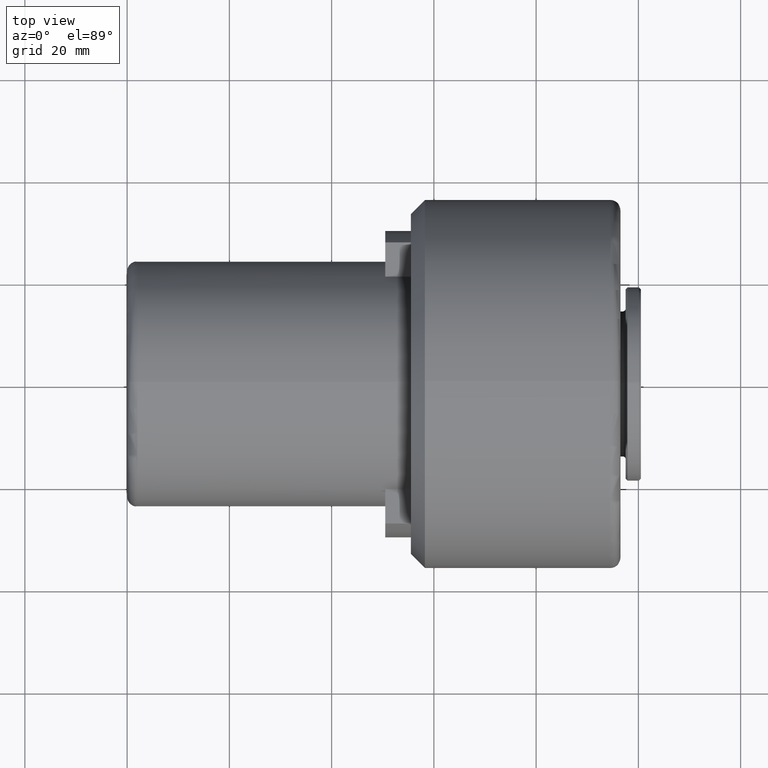
[diagram: clean part render]
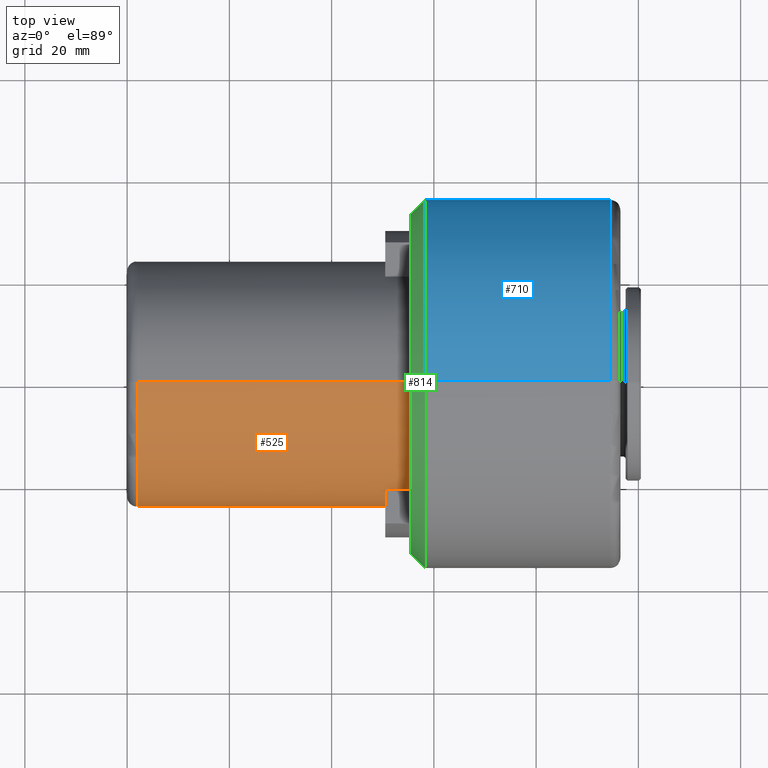
[diagram: same view with three faces highlighted in distinct colors, each labeled with its STEP entity id]
A machine part, top view with three faces highlighted in distinct colors.
Their STEP definitions:

[orange] entity #525 — the highlighted cylindrical surface (partial cylindrical patch) has radius 24 mm, axis along (-1, 0, -0).
#49 = ORIENTED_EDGE ( 'NONE', *, *, #817, .T. ) ;
#57 = ORIENTED_EDGE ( 'NONE', *, *, #260, .T. ) ;
#91 = VECTOR ( 'NONE', #605, 1000.000000000000000 ) ;
#96 = VERTEX_POINT ( 'NONE', #1067 ) ;
#112 = VERTEX_POINT ( 'NONE', #1016 ) ;
#120 = CYLINDRICAL_SURFACE ( 'NONE', #370, 24.00000000000000000 ) ;
#159 = EDGE_CURVE ( 'NONE', #872, #343, #1342, .T. ) ;
#163 = VECTOR ( 'NONE', #1170, 1000.000000000000000 ) ;
#171 = AXIS2_PLACEMENT_3D ( 'NONE', #741, #1278, #1062 ) ;
#199 = LINE ( 'NONE', #1335, #163 ) ;
#201 = CIRCLE ( 'NONE', #566, 24.00000000000000000 ) ;
#212 = DIRECTION ( 'NONE',  ( 0.0000000000000000000, 0.0000000000000000000, 1.000000000000000000 ) ) ;
#214 = DIRECTION ( 'NONE',  ( -1.000000000000000000, 0.0000000000000000000, -1.445602896647339200E-016 ) ) ;
#257 = VERTEX_POINT ( 'NONE', #568 ) ;
#260 = EDGE_CURVE ( 'NONE', #389, #257, #1305, .T. ) ;
#270 = CARTESIAN_POINT ( 'NONE',  ( 55.49999999999999300, 0.0000000000000000000, 24.00000000000000400 ) ) ;
#281 = DIRECTION ( 'NONE',  ( 1.000000000000000000, -0.0000000000000000000, -0.0000000000000000000 ) ) ;
#295 = VERTEX_POINT ( 'NONE', #1112 ) ;
#311 = CIRCLE ( 'NONE', #507, 24.00000000000000000 ) ;
#326 = EDGE_CURVE ( 'NONE', #872, #444, #956, .T. ) ;
#343 = VERTEX_POINT ( 'NONE', #526 ) ;
#355 = CARTESIAN_POINT ( 'NONE',  ( 55.49999999999999300, 0.0000000000000000000, -7.523163844717393100E-031 ) ) ;
#370 = AXIS2_PLACEMENT_3D ( 'NONE', #1237, #1216, #530 ) ;
#377 = LINE ( 'NONE', #404, #91 ) ;
#387 = ORIENTED_EDGE ( 'NONE', *, *, #1313, .T. ) ;
#389 = VERTEX_POINT ( 'NONE', #270 ) ;
#404 = CARTESIAN_POINT ( 'NONE',  ( 55.50000000000000000, -20.78460968932014900, 12.00000000260912700 ) ) ;
#444 = VERTEX_POINT ( 'NONE', #1115 ) ;
#507 = AXIS2_PLACEMENT_3D ( 'NONE', #355, #1361, #1286 ) ;
#512 = EDGE_CURVE ( 'NONE', #444, #295, #199, .T. ) ;
#525 = ADVANCED_FACE ( 'NONE', ( #1256 ), #120, .T. ) ;
#526 = CARTESIAN_POINT ( 'NONE',  ( 2.000000000000001800, 2.939152317953648700E-015, -24.00000000000001100 ) ) ;
#530 = DIRECTION ( 'NONE',  ( -2.891205793294678300E-016, 0.0000000000000000000, 1.000000000000000000 ) ) ;
#537 = ORIENTED_EDGE ( 'NONE', *, *, #326, .T. ) ;
#566 = AXIS2_PLACEMENT_3D ( 'NONE', #1021, #281, #1023 ) ;
#568 = CARTESIAN_POINT ( 'NONE',  ( 2.000000000000001800, 0.0000000000000000000, 23.99999999999999300 ) ) ;
#571 = ORIENTED_EDGE ( 'NONE', *, *, #1003, .T. ) ;
#605 = DIRECTION ( 'NONE',  ( 1.000000000000000000, -0.0000000000000000000, 1.445602896647339200E-016 ) ) ;
#653 = EDGE_LOOP ( 'NONE', ( #1165, #537, #860, #49, #962, #387, #57, #571 ) ) ;
#662 = CARTESIAN_POINT ( 'NONE',  ( 55.49999999999999300, 0.0000000000000000000, 24.00000000000000000 ) ) ;
#741 = CARTESIAN_POINT ( 'NONE',  ( 55.50000000000000700, 0.0000000000000000000, 5.015442563508426400E-031 ) ) ;
#743 = VECTOR ( 'NONE', #214, 1000.000000000000000 ) ;
#764 = CARTESIAN_POINT ( 'NONE',  ( 50.50000000381932400, 0.0000000000000000000, -7.228014477715474900E-016 ) ) ;
#796 = CIRCLE ( 'NONE', #1389, 24.00000000000000000 ) ;
#817 = EDGE_CURVE ( 'NONE', #295, #96, #796, .T. ) ;
#838 = VECTOR ( 'NONE', #1157, 1000.000000000000000 ) ;
#860 = ORIENTED_EDGE ( 'NONE', *, *, #512, .T. ) ;
#872 = VERTEX_POINT ( 'NONE', #1166 ) ;
#956 = CIRCLE ( 'NONE', #171, 24.00000000000000000 ) ;
#962 = ORIENTED_EDGE ( 'NONE', *, *, #1096, .T. ) ;
#1003 = EDGE_CURVE ( 'NONE', #257, #343, #201, .T. ) ;
#1016 = CARTESIAN_POINT ( 'NONE',  ( 55.49999999999999300, -20.78460969007334200, 12.00000000130456000 ) ) ;
#1021 = CARTESIAN_POINT ( 'NONE',  ( 2.000000000000001800, 0.0000000000000000000, -7.733975497063264400E-015 ) ) ;
#1023 = DIRECTION ( 'NONE',  ( 0.0000000000000000000, 0.0000000000000000000, 1.000000000000000000 ) ) ;
#1061 = CARTESIAN_POINT ( 'NONE',  ( 55.50000000000000700, 2.939152317953647900E-015, -24.00000000000000000 ) ) ;
#1062 = DIRECTION ( 'NONE',  ( 0.0000000000000000000, 0.0000000000000000000, 1.000000000000000000 ) ) ;
#1067 = CARTESIAN_POINT ( 'NONE',  ( 50.50000000190966200, -20.78460969007333900, 12.00000000065228200 ) ) ;
#1080 = DIRECTION ( 'NONE',  ( -1.000000000000000000, 0.0000000000000000000, -1.445602896647339200E-016 ) ) ;
#1096 = EDGE_CURVE ( 'NONE', #96, #112, #377, .T. ) ;
#1112 = CARTESIAN_POINT ( 'NONE',  ( 50.50000000381932400, -20.78460969330693700, -11.99999999570380800 ) ) ;
#1115 = CARTESIAN_POINT ( 'NONE',  ( 55.50000000000000700, -20.78460969578734200, -11.99999999140761600 ) ) ;
#1157 = DIRECTION ( 'NONE',  ( -1.000000000000000000, 0.0000000000000000000, -1.445602896647339200E-016 ) ) ;
#1165 = ORIENTED_EDGE ( 'NONE', *, *, #159, .F. ) ;
#1166 = CARTESIAN_POINT ( 'NONE',  ( 55.50000000000000700, 2.939152317953647900E-015, -24.00000000000000000 ) ) ;
#1170 = DIRECTION ( 'NONE',  ( -1.000000000000000000, 0.0000000000000000000, -1.445602896647339200E-016 ) ) ;
#1216 = DIRECTION ( 'NONE',  ( -1.000000000000000000, 0.0000000000000000000, -1.445602896647339200E-016 ) ) ;
#1237 = CARTESIAN_POINT ( 'NONE',  ( 55.50000000000000000, 0.0000000000000000000, 0.0000000000000000000 ) ) ;
#1256 = FACE_OUTER_BOUND ( 'NONE', #653, .T. ) ;
#1278 = DIRECTION ( 'NONE',  ( -1.000000000000000000, 0.0000000000000000000, -1.445602896647339200E-016 ) ) ;
#1286 = DIRECTION ( 'NONE',  ( 0.0000000000000000000, 0.0000000000000000000, 1.000000000000000000 ) ) ;
#1305 = LINE ( 'NONE', #662, #838 ) ;
#1313 = EDGE_CURVE ( 'NONE', #112, #389, #311, .T. ) ;
#1335 = CARTESIAN_POINT ( 'NONE',  ( 55.50000000000000000, -20.78460969578734200, -11.99999999140761600 ) ) ;
#1342 = LINE ( 'NONE', #1061, #743 ) ;
#1361 = DIRECTION ( 'NONE',  ( -1.000000000000000000, 0.0000000000000000000, -1.445602896647339200E-016 ) ) ;
#1389 = AXIS2_PLACEMENT_3D ( 'NONE', #764, #1080, #212 ) ;

[blue] entity #710 — the highlighted cylindrical surface (partial cylindrical patch) has radius 36 mm, axis along (-1, 0, 0).
#17 = CARTESIAN_POINT ( 'NONE',  ( 58.25000000000002100, 4.408728476930474800E-015, -36.00000000000002800 ) ) ;
#32 = ORIENTED_EDGE ( 'NONE', *, *, #522, .F. ) ;
#95 = ORIENTED_EDGE ( 'NONE', *, *, #648, .F. ) ;
#114 = EDGE_CURVE ( 'NONE', #308, #1299, #241, .T. ) ;
#169 = CARTESIAN_POINT ( 'NONE',  ( 58.25000000000001400, 0.0000000000000000000, 2.869467403871423700E-016 ) ) ;
#173 = CARTESIAN_POINT ( 'NONE',  ( 58.25000000000001400, 0.0000000000000000000, 2.869467403871423700E-016 ) ) ;
#193 = DIRECTION ( 'NONE',  ( 0.0000000000000000000, 0.0000000000000000000, 1.000000000000000000 ) ) ;
#241 = CIRCLE ( 'NONE', #1049, 36.00000000000001400 ) ;
#244 = ORIENTED_EDGE ( 'NONE', *, *, #1139, .T. ) ;
#247 = EDGE_CURVE ( 'NONE', #308, #1006, #1085, .T. ) ;
#250 = CARTESIAN_POINT ( 'NONE',  ( 94.50000000000000000, 0.0000000000000000000, 36.00000000000001400 ) ) ;
#302 = CYLINDRICAL_SURFACE ( 'NONE', #384, 36.00000000000001400 ) ;
#305 = VECTOR ( 'NONE', #1331, 1000.000000000000000 ) ;
#308 = VERTEX_POINT ( 'NONE', #250 ) ;
#331 = CIRCLE ( 'NONE', #393, 36.00000000000002800 ) ;
#348 = CARTESIAN_POINT ( 'NONE',  ( 94.50000000000000000, 4.408728476930472400E-015, -36.00000000000001400 ) ) ;
#384 = AXIS2_PLACEMENT_3D ( 'NONE', #857, #1031, #193 ) ;
#393 = AXIS2_PLACEMENT_3D ( 'NONE', #173, #1395, #750 ) ;
#461 = CARTESIAN_POINT ( 'NONE',  ( 73.59999999999999400, 0.0000000000000000000, 36.00000000000001400 ) ) ;
#522 = EDGE_CURVE ( 'NONE', #1006, #1106, #995, .T. ) ;
#531 = DIRECTION ( 'NONE',  ( -1.000000000000000000, 0.0000000000000000000, 0.0000000000000000000 ) ) ;
#547 = EDGE_LOOP ( 'NONE', ( #1295, #244, #95, #32, #989 ) ) ;
#576 = CARTESIAN_POINT ( 'NONE',  ( 73.59999999999999400, 4.408728476930472400E-015, -36.00000000000001400 ) ) ;
#648 = EDGE_CURVE ( 'NONE', #1106, #942, #331, .T. ) ;
#710 = ADVANCED_FACE ( 'NONE', ( #903 ), #302, .T. ) ;
#736 = CARTESIAN_POINT ( 'NONE',  ( 94.50000000000000000, 0.0000000000000000000, 0.0000000000000000000 ) ) ;
#750 = DIRECTION ( 'NONE',  ( 1.927470528863117600E-016, -8.881784197001252300E-016, -1.000000000000000000 ) ) ;
#767 = VECTOR ( 'NONE', #531, 1000.000000000000000 ) ;
#790 = DIRECTION ( 'NONE',  ( -1.000000000000000000, -0.0000000000000000000, -1.043442692316876300E-016 ) ) ;
#857 = CARTESIAN_POINT ( 'NONE',  ( 73.59999999999999400, 0.0000000000000000000, 0.0000000000000000000 ) ) ;
#893 = AXIS2_PLACEMENT_3D ( 'NONE', #169, #790, #1004 ) ;
#903 = FACE_OUTER_BOUND ( 'NONE', #547, .T. ) ;
#905 = LINE ( 'NONE', #576, #305 ) ;
#942 = VERTEX_POINT ( 'NONE', #17 ) ;
#989 = ORIENTED_EDGE ( 'NONE', *, *, #247, .F. ) ;
#995 = CIRCLE ( 'NONE', #893, 36.00000000000002800 ) ;
#1004 = DIRECTION ( 'NONE',  ( 1.927470528863117600E-016, 0.0000000000000000000, -1.000000000000000000 ) ) ;
#1006 = VERTEX_POINT ( 'NONE', #1346 ) ;
#1031 = DIRECTION ( 'NONE',  ( -1.000000000000000000, 0.0000000000000000000, 0.0000000000000000000 ) ) ;
#1049 = AXIS2_PLACEMENT_3D ( 'NONE', #736, #1266, #1280 ) ;
#1085 = LINE ( 'NONE', #461, #767 ) ;
#1106 = VERTEX_POINT ( 'NONE', #1326 ) ;
#1139 = EDGE_CURVE ( 'NONE', #1299, #942, #905, .T. ) ;
#1266 = DIRECTION ( 'NONE',  ( -1.000000000000000000, 0.0000000000000000000, 0.0000000000000000000 ) ) ;
#1280 = DIRECTION ( 'NONE',  ( 0.0000000000000000000, 0.0000000000000000000, 1.000000000000000000 ) ) ;
#1295 = ORIENTED_EDGE ( 'NONE', *, *, #114, .T. ) ;
#1299 = VERTEX_POINT ( 'NONE', #348 ) ;
#1326 = CARTESIAN_POINT ( 'NONE',  ( 58.25000000000001400, 36.00000000000001400, 0.0000000000000000000 ) ) ;
#1331 = DIRECTION ( 'NONE',  ( -1.000000000000000000, 0.0000000000000000000, 0.0000000000000000000 ) ) ;
#1346 = CARTESIAN_POINT ( 'NONE',  ( 58.25000000000000700, 0.0000000000000000000, 36.00000000000002800 ) ) ;
#1395 = DIRECTION ( 'NONE',  ( -1.000000000000000000, -0.0000000000000000000, -1.043442692316876300E-016 ) ) ;

[green] entity #814 — the highlighted conical surface has half-angle 45 deg.
#5 = AXIS2_PLACEMENT_3D ( 'NONE', #575, #1181, #557 ) ;
#38 = CARTESIAN_POINT ( 'NONE',  ( 58.25000000000002100, -36.00000000000002100, 4.408728476930474000E-015 ) ) ;
#132 = AXIS2_PLACEMENT_3D ( 'NONE', #1033, #1092, #1360 ) ;
#141 = DIRECTION ( 'NONE',  ( 0.7071067811865485700, -0.7071067811865465700, 8.659560562354924200E-017 ) ) ;
#153 = VERTEX_POINT ( 'NONE', #1043 ) ;
#169 = CARTESIAN_POINT ( 'NONE',  ( 58.25000000000001400, 0.0000000000000000000, 2.869467403871423700E-016 ) ) ;
#174 = EDGE_CURVE ( 'NONE', #153, #1106, #1306, .T. ) ;
#190 = CARTESIAN_POINT ( 'NONE',  ( 55.49999999999999300, -33.24999999999999300, 4.240339542047711600E-015 ) ) ;
#271 = FACE_OUTER_BOUND ( 'NONE', #528, .T. ) ;
#300 = CARTESIAN_POINT ( 'NONE',  ( 58.25000000000001400, -36.00000000000001400, 4.408728476930473200E-015 ) ) ;
#440 = ORIENTED_EDGE ( 'NONE', *, *, #174, .F. ) ;
#443 = ORIENTED_EDGE ( 'NONE', *, *, #522, .T. ) ;
#476 = CIRCLE ( 'NONE', #1167, 36.00000000000002800 ) ;
#502 = EDGE_CURVE ( 'NONE', #1359, #1006, #476, .T. ) ;
#522 = EDGE_CURVE ( 'NONE', #1006, #1106, #995, .T. ) ;
#528 = EDGE_LOOP ( 'NONE', ( #687, #939, #1071, #443, #440 ) ) ;
#532 = CONICAL_SURFACE ( 'NONE', #5, 36.00000000000002100, 0.7853981633974470600 ) ;
#557 = DIRECTION ( 'NONE',  ( 0.0000000000000000000, 1.000000000000000000, 0.0000000000000000000 ) ) ;
#575 = CARTESIAN_POINT ( 'NONE',  ( 58.25000000000002100, 0.0000000000000000000, 0.0000000000000000000 ) ) ;
#687 = ORIENTED_EDGE ( 'NONE', *, *, #1105, .T. ) ;
#740 = CARTESIAN_POINT ( 'NONE',  ( 58.25000000000002100, 36.00000000000002100, 0.0000000000000000000 ) ) ;
#790 = DIRECTION ( 'NONE',  ( -1.000000000000000000, -0.0000000000000000000, -1.043442692316876300E-016 ) ) ;
#814 = ADVANCED_FACE ( 'NONE', ( #271 ), #532, .T. ) ;
#845 = DIRECTION ( 'NONE',  ( 0.7071067811865483500, 0.7071067811865468000, 0.0000000000000000000 ) ) ;
#873 = EDGE_CURVE ( 'NONE', #1190, #1359, #1340, .T. ) ;
#886 = DIRECTION ( 'NONE',  ( -1.000000000000000000, -0.0000000000000000000, -1.043442692316876300E-016 ) ) ;
#893 = AXIS2_PLACEMENT_3D ( 'NONE', #169, #790, #1004 ) ;
#939 = ORIENTED_EDGE ( 'NONE', *, *, #873, .T. ) ;
#995 = CIRCLE ( 'NONE', #893, 36.00000000000002800 ) ;
#1004 = DIRECTION ( 'NONE',  ( 1.927470528863117600E-016, 0.0000000000000000000, -1.000000000000000000 ) ) ;
#1006 = VERTEX_POINT ( 'NONE', #1346 ) ;
#1022 = DIRECTION ( 'NONE',  ( 1.927470528863117600E-016, 0.0000000000000000000, -1.000000000000000000 ) ) ;
#1033 = CARTESIAN_POINT ( 'NONE',  ( 55.49999999999999300, -2.650271977186816100E-016, 0.0000000000000000000 ) ) ;
#1043 = CARTESIAN_POINT ( 'NONE',  ( 55.49999999999999300, 33.24999999999999300, 0.0000000000000000000 ) ) ;
#1055 = VECTOR ( 'NONE', #141, 1000.000000000000000 ) ;
#1071 = ORIENTED_EDGE ( 'NONE', *, *, #502, .T. ) ;
#1092 = DIRECTION ( 'NONE',  ( 1.000000000000000000, 9.637352644315590300E-017, -0.0000000000000000000 ) ) ;
#1105 = EDGE_CURVE ( 'NONE', #153, #1190, #1162, .T. ) ;
#1106 = VERTEX_POINT ( 'NONE', #1326 ) ;
#1162 = CIRCLE ( 'NONE', #132, 33.24999999999999300 ) ;
#1167 = AXIS2_PLACEMENT_3D ( 'NONE', #1217, #886, #1022 ) ;
#1181 = DIRECTION ( 'NONE',  ( 1.000000000000000000, 9.637352644315590300E-017, -0.0000000000000000000 ) ) ;
#1190 = VERTEX_POINT ( 'NONE', #190 ) ;
#1217 = CARTESIAN_POINT ( 'NONE',  ( 58.25000000000001400, 0.0000000000000000000, 2.869467403871423700E-016 ) ) ;
#1277 = VECTOR ( 'NONE', #845, 1000.000000000000000 ) ;
#1306 = LINE ( 'NONE', #740, #1277 ) ;
#1326 = CARTESIAN_POINT ( 'NONE',  ( 58.25000000000001400, 36.00000000000001400, 0.0000000000000000000 ) ) ;
#1340 = LINE ( 'NONE', #38, #1055 ) ;
#1346 = CARTESIAN_POINT ( 'NONE',  ( 58.25000000000000700, 0.0000000000000000000, 36.00000000000002800 ) ) ;
#1359 = VERTEX_POINT ( 'NONE', #300 ) ;
#1360 = DIRECTION ( 'NONE',  ( 0.0000000000000000000, 1.000000000000000000, 0.0000000000000000000 ) ) ;